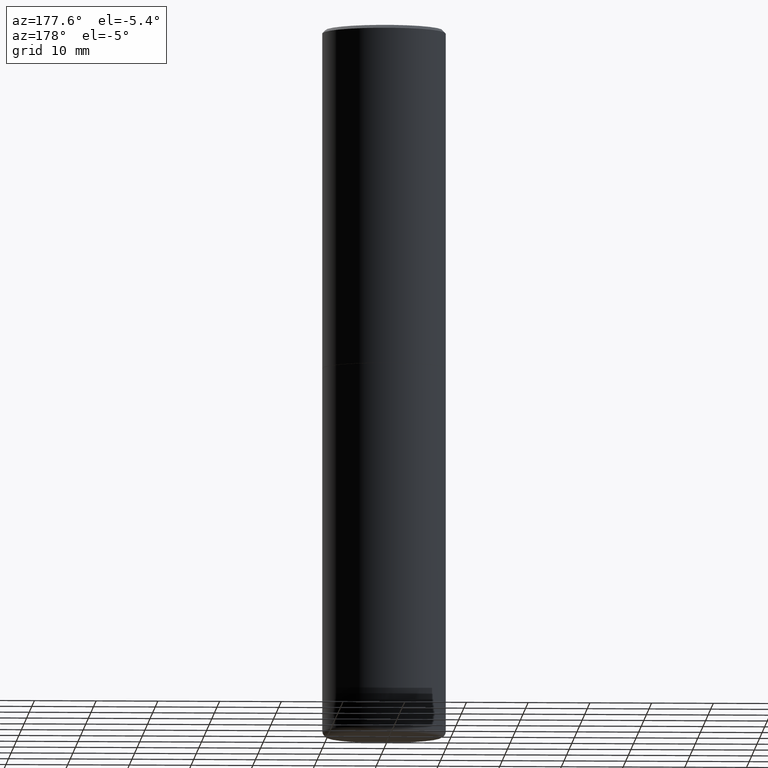
[diagram: clean part render]
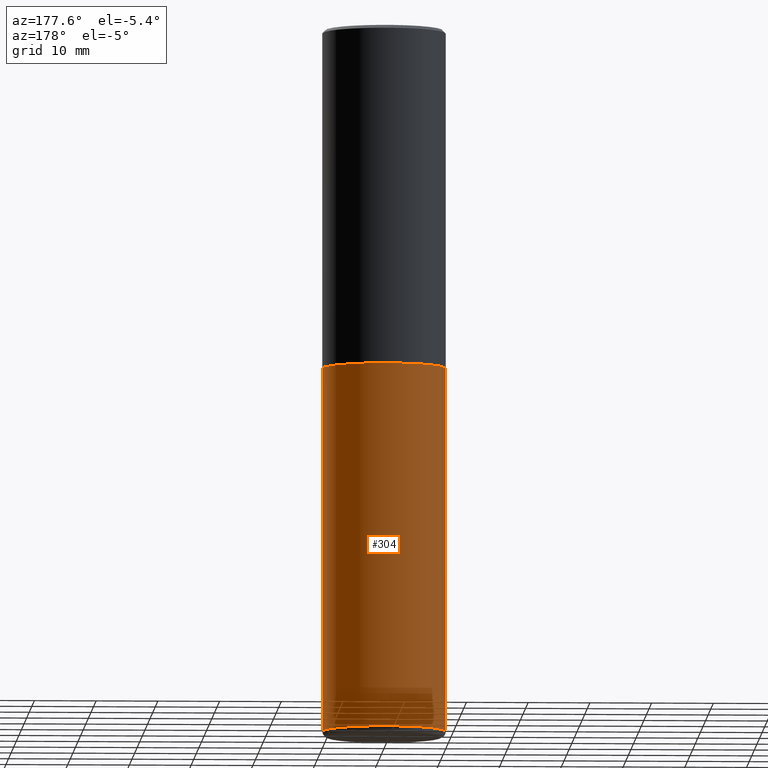
[diagram: same view with one face highlighted and labeled with its STEP entity id]
A machine part, auxiliary view. The second image highlights one B-rep face of the part: STEP entity #304.
In plain terms, the highlighted cylindrical surface (partial cylindrical patch) has radius 10 mm, axis along (-0, 0, 1).
Its self-contained STEP definition (entity closure, byte-faithful):
#6 = CARTESIAN_POINT ( 'NONE',  ( 1.097575309592012950E-28, -1.567046654499580152E-14, -4.488199999999999079 ) ) ;
#11 = ORIENTED_EDGE ( 'NONE', *, *, #184, .T. ) ;
#14 = VERTEX_POINT ( 'NONE', #238 ) ;
#39 = LINE ( 'NONE', #262, #151 ) ;
#49 = DIRECTION ( 'NONE',  ( 1.000000000000000000, -6.982962677686265133E-15, 0.000000000000000000 ) ) ;
#83 = CARTESIAN_POINT ( 'NONE',  ( 5.295418152913293224E-29, -7.560453691130945845E-15, -2.165399999999999547 ) ) ;
#85 = AXIS2_PLACEMENT_3D ( 'NONE', #6, #217, #124 ) ;
#97 = CARTESIAN_POINT ( 'NONE',  ( 0.3937000000000000499, -1.030964609733602906E-14, -2.165399999999999547 ) ) ;
#99 = CARTESIAN_POINT ( 'NONE',  ( -0.3937000000000000499, -8.818053367375859687E-15, -2.165399999999999547 ) ) ;
#101 = CIRCLE ( 'NONE', #108, 0.3937000000000000499 ) ;
#108 = AXIS2_PLACEMENT_3D ( 'NONE', #83, #340, #49 ) ;
#111 = ORIENTED_EDGE ( 'NONE', *, *, #398, .F. ) ;
#124 = DIRECTION ( 'NONE',  ( 1.000000000000000000, -6.982962677686262766E-15, 0.000000000000000000 ) ) ;
#144 = CYLINDRICAL_SURFACE ( 'NONE', #273, 0.3937000000000000499 ) ;
#151 = VECTOR ( 'NONE', #396, 39.37007874015748143 ) ;
#161 = VERTEX_POINT ( 'NONE', #256 ) ;
#168 = CIRCLE ( 'NONE', #85, 0.3937000000000000499 ) ;
#173 = ORIENTED_EDGE ( 'NONE', *, *, #208, .T. ) ;
#184 = EDGE_CURVE ( 'NONE', #14, #161, #168, .T. ) ;
#203 = EDGE_LOOP ( 'NONE', ( #11, #173, #240, #111 ) ) ;
#208 = EDGE_CURVE ( 'NONE', #161, #383, #39, .T. ) ;
#212 = CARTESIAN_POINT ( 'NONE',  ( 0.000000000000000000, 0.000000000000000000, 0.000000000000000000 ) ) ;
#217 = DIRECTION ( 'NONE',  ( -2.445468806185136597E-29, 3.491481338843145583E-15, 1.000000000000000000 ) ) ;
#219 = CARTESIAN_POINT ( 'NONE',  ( 0.3937000000000000499, -2.749192406205083217E-15, 1.919750796630860172E-29 ) ) ;
#238 = CARTESIAN_POINT ( 'NONE',  ( 0.3937000000000001054, -1.841965895120088790E-14, -4.488199999999999079 ) ) ;
#240 = ORIENTED_EDGE ( 'NONE', *, *, #248, .F. ) ;
#247 = FACE_OUTER_BOUND ( 'NONE', #203, .T. ) ;
#248 = EDGE_CURVE ( 'NONE', #403, #383, #101, .T. ) ;
#256 = CARTESIAN_POINT ( 'NONE',  ( -0.3937000000000001054, -1.287305979430828910E-14, -4.488199999999999079 ) ) ;
#262 = CARTESIAN_POINT ( 'NONE',  ( -0.3937000000000000499, 2.797406750687514786E-15, -1.936584745033356735E-29 ) ) ;
#273 = AXIS2_PLACEMENT_3D ( 'NONE', #212, #282, #413 ) ;
#282 = DIRECTION ( 'NONE',  ( -2.445468806185136597E-29, 3.491481338843145583E-15, 1.000000000000000000 ) ) ;
#289 = LINE ( 'NONE', #219, #299 ) ;
#299 = VECTOR ( 'NONE', #391, 39.37007874015748143 ) ;
#304 = ADVANCED_FACE ( 'NONE', ( #247 ), #144, .T. ) ;
#340 = DIRECTION ( 'NONE',  ( -2.445468806185136597E-29, 3.491481338843145583E-15, 1.000000000000000000 ) ) ;
#383 = VERTEX_POINT ( 'NONE', #99 ) ;
#391 = DIRECTION ( 'NONE',  ( -2.445468806185136877E-29, 3.491481338843145188E-15, 1.000000000000000000 ) ) ;
#396 = DIRECTION ( 'NONE',  ( -2.445468806185136877E-29, 3.491481338843145188E-15, 1.000000000000000000 ) ) ;
#398 = EDGE_CURVE ( 'NONE', #14, #403, #289, .T. ) ;
#403 = VERTEX_POINT ( 'NONE', #97 ) ;
#413 = DIRECTION ( 'NONE',  ( 1.000000000000000000, -6.982962677686265922E-15, 4.876176775795935793E-29 ) ) ;